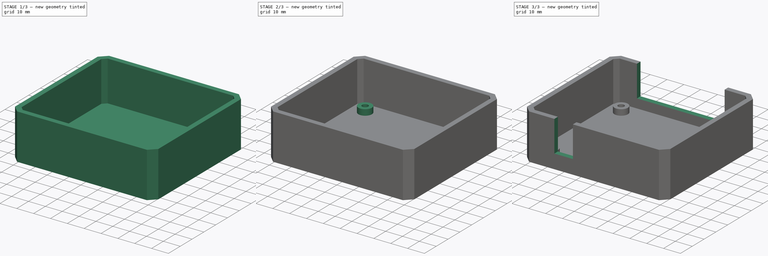
[diagram: build sequence overview — one tinted view per stage of 3, left to right]
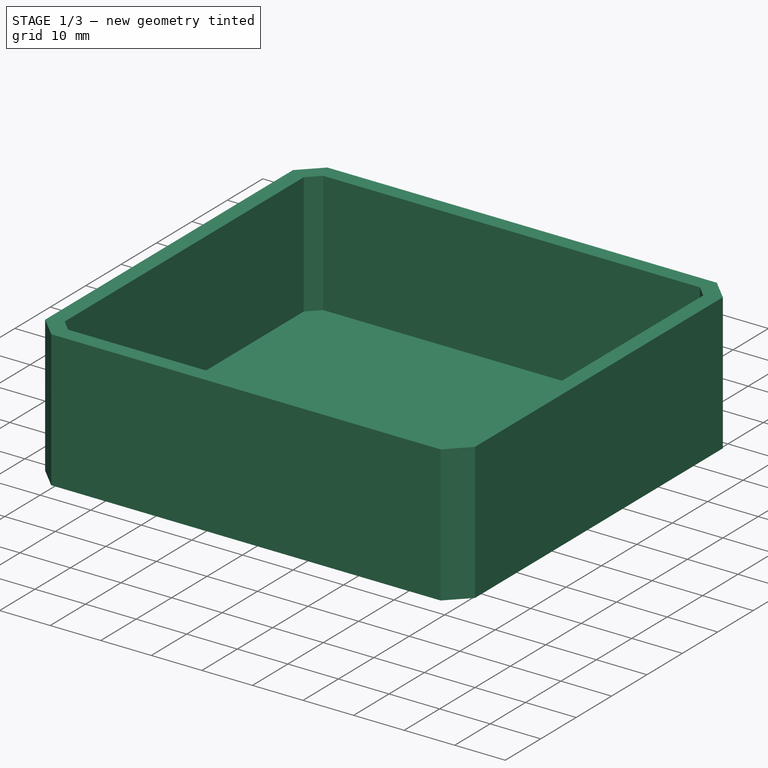
[diagram: stage 1 of 3 — iso view after this stage's code; geometry added in this stage tinted green]
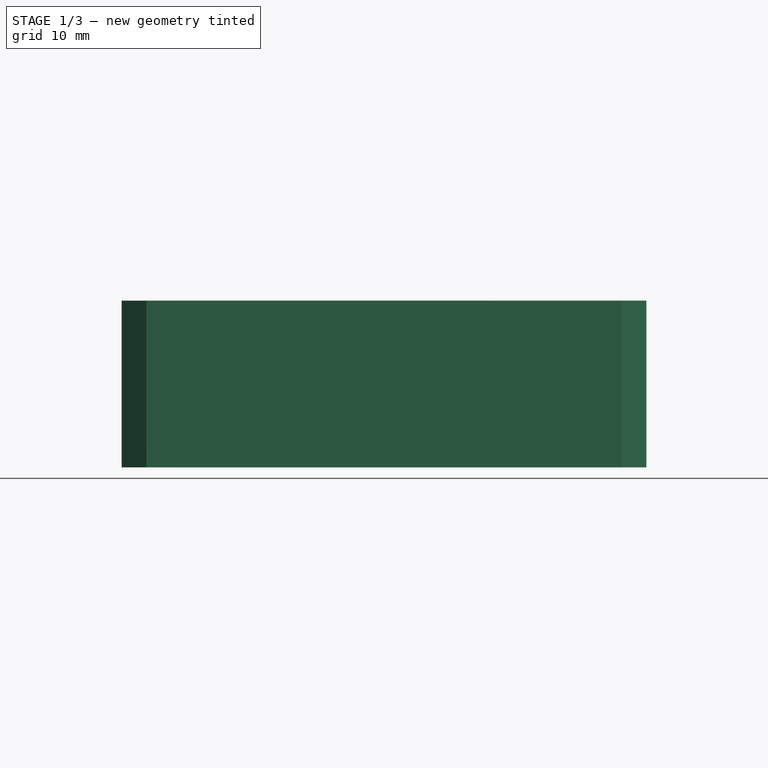
[diagram: stage 1 of 3 — front view after this stage's code; geometry added in this stage tinted green]
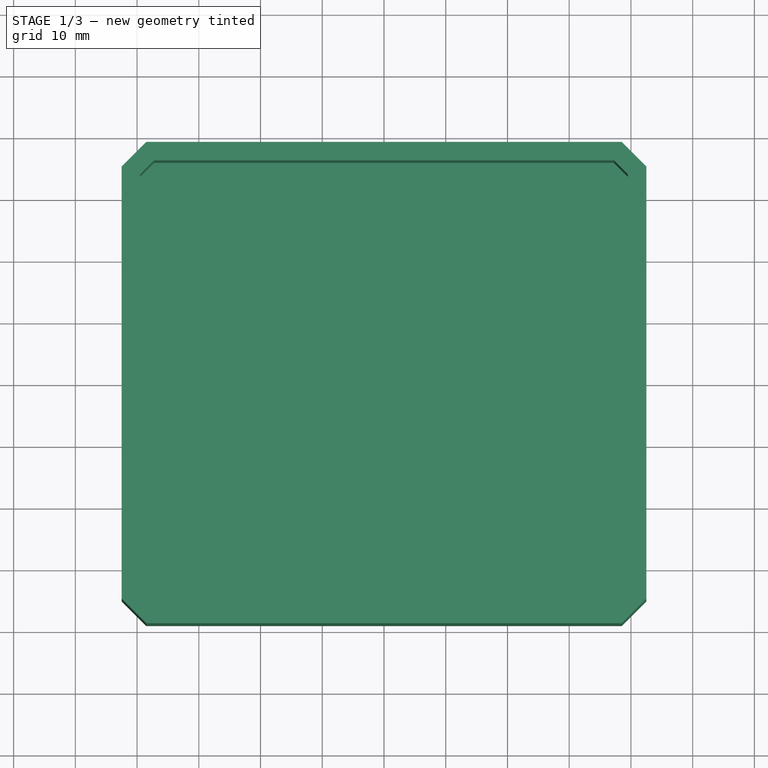
[diagram: stage 1 of 3 — top view after this stage's code; geometry added in this stage tinted green]
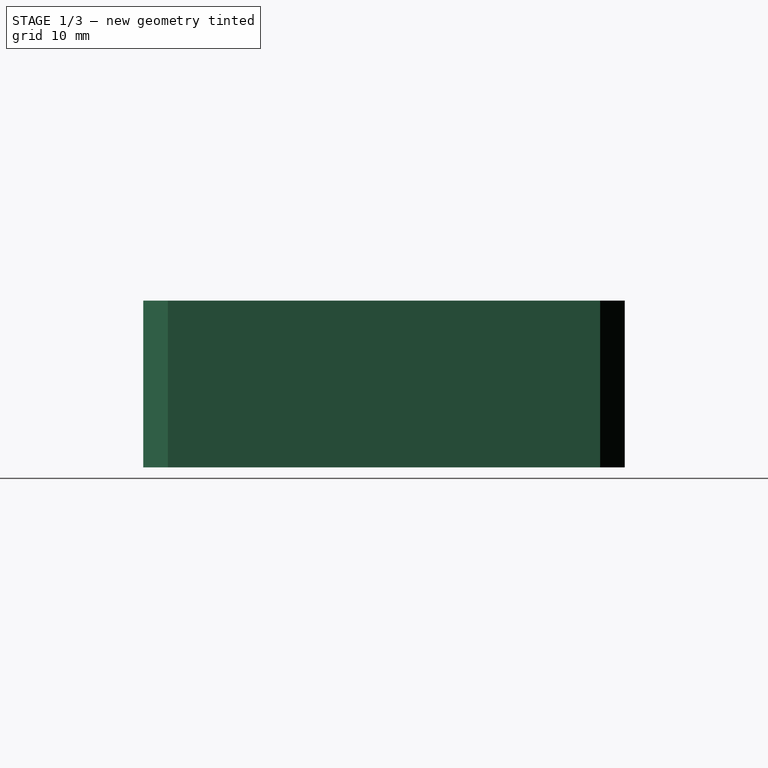
[diagram: stage 1 of 3 — right view after this stage's code; geometry added in this stage tinted green]
FCSTD DOCUMENT  (FreeCAD 0.17R13528 (Git))
Label: PS2 to RS232 base
License: All rights reserved
LicenseURL: http://en.wikipedia.org/wiki/All_rights_reserved
objects: Sketcher::SketchObject×5, PartDesign::Pocket×3, PartDesign::Pad×2, PartDesign::Body×1, Part::Feature×1, App::Part×1, Part::Chamfer×1
note: 18 computed .brp shape members not serialized (recipe doc carries the construction recipe); baked Part::Feature solids carry a one-line shape summary decoded from their .brp

FEATURE [PartDesign::Body] Body
  Origin = -> Origin
FEATURE [Sketcher::SketchObject] Sketch
  MapMode = 5
  Support = -> [XY_Plane]
  sketch-geometry (8):
    g0: LineSegment StartX=38.5 StartY=39 StartZ=0 EndX=-38.5 EndY=39 EndZ=0
    g1: LineSegment StartX=-38.5 StartY=39 StartZ=0 EndX=-42.5 EndY=35 EndZ=0
    g2: LineSegment StartX=-42.5 StartY=35 StartZ=0 EndX=-42.5 EndY=-35 EndZ=0
    g3: LineSegment StartX=-42.5 StartY=-35 StartZ=0 EndX=-38.5 EndY=-39 EndZ=0
    g4: LineSegment StartX=-38.5 StartY=-39 StartZ=0 EndX=38.5 EndY=-39 EndZ=0
    g5: LineSegment StartX=38.5 StartY=-39 StartZ=0 EndX=42.5 EndY=-35 EndZ=0
    g6: LineSegment StartX=42.5 StartY=-35 StartZ=0 EndX=42.5 EndY=35 EndZ=0
    g7: LineSegment StartX=42.5 StartY=35 StartZ=0 EndX=38.5 EndY=39 EndZ=0
  constraints (23):
    c: Coincident(g0,g1)
    c: Coincident(g1,g2)
    c: Coincident(g2,g3)
    c: Coincident(g3,g4)
    c: Coincident(g4,g5)
    c: Coincident(g5,g6)
    c: Coincident(g6,g7)
    c: Coincident(g7,g0)
    c: Horizontal(g0)
    c: Horizontal(g4)
    c: Vertical(g6)
    c: Vertical(g2)
    c: Parallel(g3,g7)
    c: Parallel(g1,g5)
    c: Angle(g2,g1) = 2.35619
    c: Equal(g1,g3)
    c: Equal(g3,g5)
    c: Equal(g5,g7)
    c: DistanceX(g1,g0) = 4
    c: Symmetric(g2,g5,g-2)
    c: Symmetric(g0,g3,g-1)
    c: DistanceX(g1,g6) = 85
    c: DistanceY(g3,g0) = 78
FEATURE [PartDesign::Pad] Pad
  Length = 27
  Length2 = 100
  Profile = -> Sketch
  Type = 0
FEATURE [Sketcher::SketchObject] Sketch001
  ExternalGeometry = -> [Pad]
  MapMode = 5
  Placement = pos=(0,0,27) rot=(0,0,1;0rad)
  Support = -> [Pad]
  sketch-geometry (11):
    g0: LineSegment StartX=37.2574 StartY=36 StartZ=0 EndX=-37.2574 EndY=36 EndZ=0
    g1: LineSegment StartX=-37.2574 StartY=36 StartZ=0 EndX=-39.5 EndY=33.7574 EndZ=0
    g2: LineSegment StartX=-39.5 StartY=33.7574 StartZ=0 EndX=-39.5 EndY=-33.7574 EndZ=0
    g3: LineSegment StartX=-39.5 StartY=-33.7574 StartZ=0 EndX=-37.2574 EndY=-36 EndZ=0
    g4: LineSegment StartX=-37.2574 StartY=-36 StartZ=0 EndX=37.2574 EndY=-36 EndZ=0
    g5: LineSegment StartX=37.2574 StartY=-36 StartZ=0 EndX=39.5 EndY=-33.7574 EndZ=0
    g6: LineSegment StartX=39.5 StartY=-33.7574 StartZ=0 EndX=39.5 EndY=33.7574 EndZ=0
    g7: LineSegment StartX=39.5 StartY=33.7574 StartZ=0 EndX=37.2574 EndY=36 EndZ=0
    g8: LineSegment [constr] StartX=-39.5 StartY=33.7574 StartZ=0 EndX=-41.6213 EndY=35.8787 EndZ=0
    g9: LineSegment [constr] StartX=-37.2574 StartY=36 StartZ=0 EndX=-37.2574 EndY=39 EndZ=0
    g10: LineSegment [constr] StartX=-39.5 StartY=33.7574 StartZ=0 EndX=-42.5 EndY=33.7574 EndZ=0
  constraints (29):
    c: Coincident(g0,g1)
    c: Coincident(g1,g2)
    c: Coincident(g2,g3)
    c: Coincident(g3,g4)
    c: Coincident(g4,g5)
    c: Coincident(g5,g6)
    c: Coincident(g6,g7)
    c: Coincident(g0,g7)
    c: Equal(g7,g1)
    c: Equal(g1,g3)
    c: Equal(g3,g5)
    c: Horizontal(g0)
    c: Horizontal(g4)
    c: Vertical(g2)
    c: Vertical(g6)
    c: Angle(g2,g1) = 2.35619
    c: Parallel(g1,g5)
    c: Parallel(g7,g3)
    c: Symmetric(g1,g6,g-2)
    c: Symmetric(g0,g3,g-1)
    c: Perpendicular(g8,g-3) = 1.5708
    c: Coincident(g8,g1)
    c: Distance(g8) = 3
    c: Coincident(g9,g0)
    c: Perpendicular(g9,g-4) = 1.5708
    c: Equal(g8,g9)
    c: Perpendicular(g10,g-5) = 1.5708
    c: Coincident(g10,g1)
    c: Equal(g10,g8)
FEATURE [PartDesign::Pocket] Pocket
  Length = 24
  Length2 = 100
  Profile = -> Sketch001
  Type = 0
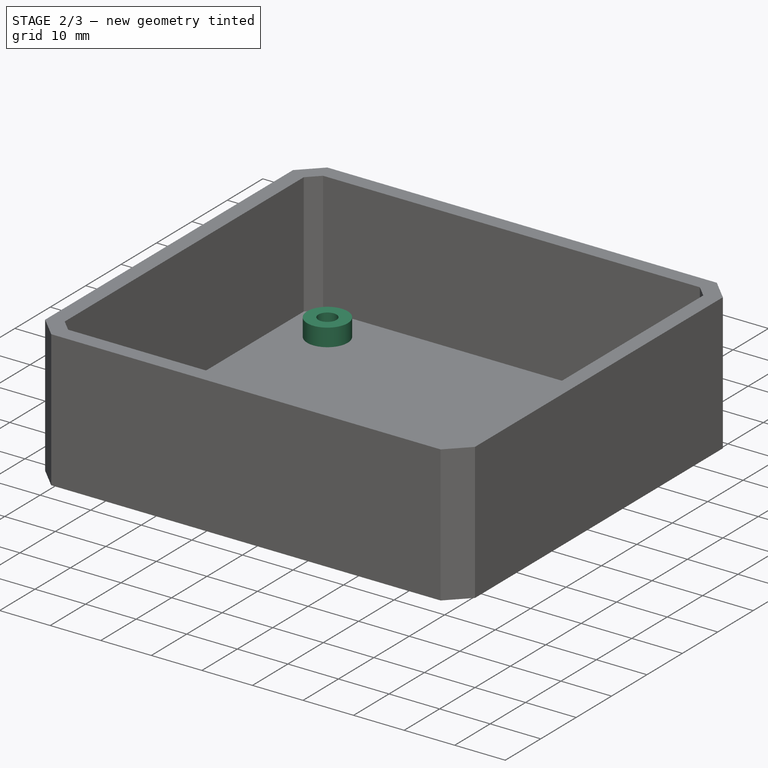
[diagram: stage 2 of 3 — iso view after this stage's code; geometry added in this stage tinted green]
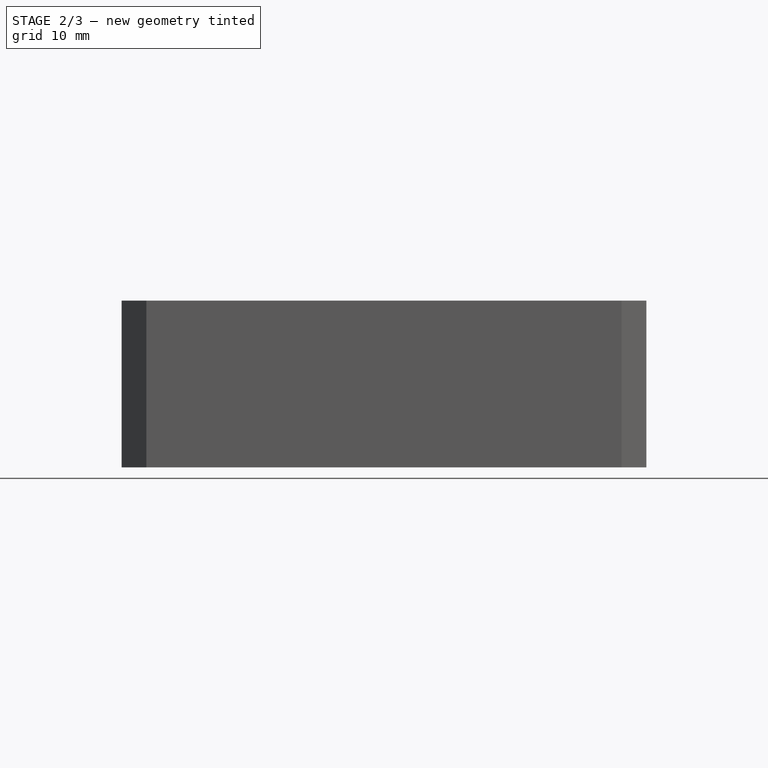
[diagram: stage 2 of 3 — front view after this stage's code; geometry added in this stage tinted green]
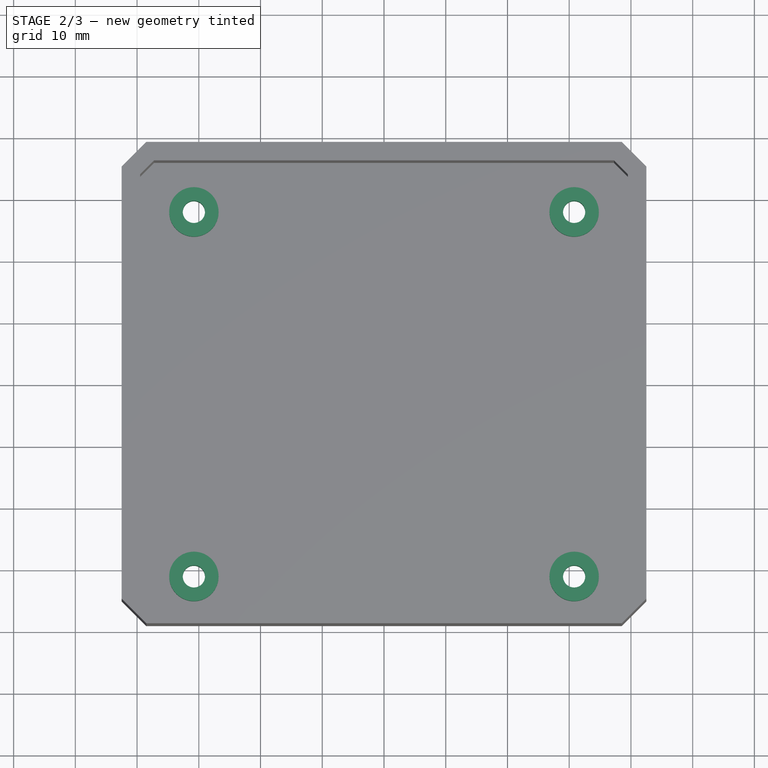
[diagram: stage 2 of 3 — top view after this stage's code; geometry added in this stage tinted green]
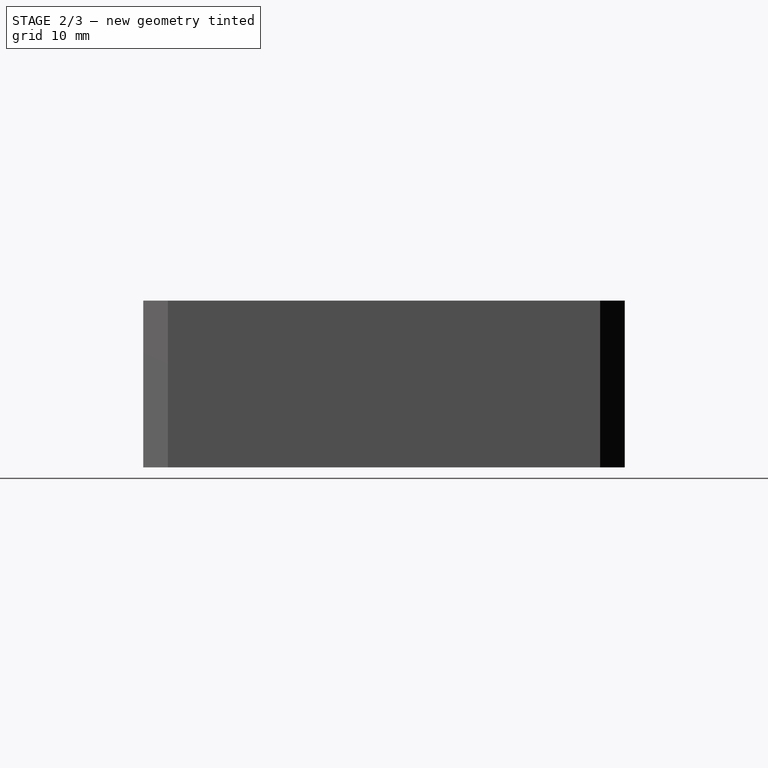
[diagram: stage 2 of 3 — right view after this stage's code; geometry added in this stage tinted green]
FEATURE [Sketcher::SketchObject] Sketch002
  ExternalGeometry = -> [Pocket]
  MapMode = 5
  Placement = pos=(0,0,3) rot=(0,0,1;0rad)
  Support = -> [Pocket]
  sketch-geometry (20):
    g0: Circle CenterX=-30.7975 CenterY=28.0138 CenterZ=0 NormalX=0 NormalY=0 NormalZ=1 AngleXU=0 Radius=4
    g1: Circle CenterX=30.7975 CenterY=28.0138 CenterZ=0 NormalX=0 NormalY=0 NormalZ=1 AngleXU=0 Radius=4
    g2: Circle CenterX=-30.7975 CenterY=-31.0413 CenterZ=0 NormalX=0 NormalY=0 NormalZ=1 AngleXU=0 Radius=4
    g3: Circle CenterX=30.7975 CenterY=-31.0413 CenterZ=0 NormalX=0 NormalY=0 NormalZ=1 AngleXU=0 Radius=4
    g4: LineSegment [constr] StartX=-30.7975 StartY=28.0138 StartZ=0 EndX=30.7975 EndY=28.0138 EndZ=0
    g5: LineSegment [constr] StartX=30.7975 StartY=28.0138 StartZ=0 EndX=30.7975 EndY=-31.0413 EndZ=0
    g6: LineSegment [constr] StartX=30.7975 StartY=-31.0413 StartZ=0 EndX=-30.7975 EndY=-31.0413 EndZ=0
    g7: LineSegment [constr] StartX=-30.7975 StartY=-31.0413 StartZ=0 EndX=-30.7975 EndY=28.0138 EndZ=0
    g8: LineSegment [constr] StartX=-34.76 StartY=35.4862 StartZ=0 EndX=34.76 EndY=35.4862 EndZ=0
    g9: LineSegment [constr] StartX=34.76 StartY=35.4862 StartZ=0 EndX=34.76 EndY=-35.4862 EndZ=0
    g10: LineSegment [constr] StartX=34.76 StartY=-35.4862 StartZ=0 EndX=-34.76 EndY=-35.4862 EndZ=0
    g11: LineSegment [constr] StartX=-34.76 StartY=-35.4862 StartZ=0 EndX=-34.76 EndY=35.4862 EndZ=0
    g12: LineSegment [constr] StartX=-10.24 StartY=39 StartZ=0 EndX=21.76 EndY=39 EndZ=0
    g13: LineSegment [constr] StartX=21.76 StartY=39 StartZ=0 EndX=21.76 EndY=35.4862 EndZ=0
    g14: LineSegment [constr] StartX=21.76 StartY=35.4862 StartZ=0 EndX=-10.24 EndY=35.4862 EndZ=0
    g15: LineSegment [constr] StartX=-10.24 StartY=35.4862 StartZ=0 EndX=-10.24 EndY=39 EndZ=0
    g16: LineSegment [constr] StartX=-25.26 StartY=36.4862 StartZ=0 EndX=-11.26 EndY=36.4862 EndZ=0
    g17: LineSegment [constr] StartX=-11.26 StartY=36.4862 StartZ=0 EndX=-11.26 EndY=35.4862 EndZ=0
    g18: LineSegment [constr] StartX=-11.26 StartY=35.4862 StartZ=0 EndX=-25.26 EndY=35.4862 EndZ=0
    g19: LineSegment [constr] StartX=-25.26 StartY=35.4862 StartZ=0 EndX=-25.26 EndY=36.4862 EndZ=0
  constraints (56):
    c: Coincident(g4,g5)
    c: Coincident(g5,g6)
    c: Coincident(g6,g7)
    c: Coincident(g7,g4)
    c: Horizontal(g4)
    c: Horizontal(g6)
    c: Vertical(g5)
    c: Vertical(g7)
    c: Coincident(g6,g2)
    c: Coincident(g3,g5)
    c: Coincident(g1,g4)
    c: Coincident(g4,g0)
    c: Distance(g4) = 61.595
    c: Distance(g7) = 59.055
    c: Radius(g0) = 4
    c: Equal(g0,g1)
    c: Equal(g0,g3)
    c: Equal(g0,g2)
    c: Symmetric(g0,g1,g-2)
    c: Coincident(g8,g9)
    c: Coincident(g9,g10)
    c: Coincident(g10,g11)
    c: Coincident(g11,g8)
    c: Horizontal(g8)
    c: Horizontal(g10)
    c: Vertical(g9)
    c: Vertical(g11)
    c: Distance(g11) = 70.9725
    c: Distance(g10) = 69.52
    c: Symmetric(g8,g8,g-2)
    c: DistanceY(g10,g2) = 4.445
    c: Coincident(g12,g13)
    c: Coincident(g13,g14)
    c: Coincident(g14,g15)
    c: Coincident(g15,g12)
    c: Horizontal(g12)
    c: Horizontal(g14)
    c: Vertical(g13)
    c: Vertical(g15)
    c: Distance(g12) = 32
    c: PointOnObject(g14,g8)
    c: PointOnObject(g12,g-3)
    c: DistanceX(g13,g8) = 13
    c: Coincident(g16,g17)
    c: Coincident(g17,g18)
    c: Coincident(g18,g19)
    c: Coincident(g19,g16)
    c: Horizontal(g16)
    c: Horizontal(g18)
    c: Vertical(g17)
    c: Vertical(g19)
    c: Distance(g16) = 14
    c: Distance(g19) = 1
    c: PointOnObject(g18,g8)
    c: DistanceX(g8,g18) = 9.5
    c: Symmetric(g8,g10,g-1)
FEATURE [PartDesign::Pad] Pad001
  Length = 3.5
  Length2 = 100
  Profile = -> Sketch002
  Type = 0
FEATURE [Sketcher::SketchObject] Sketch003
  ExternalGeometry = -> [Pad001]
  MapMode = 5
  Placement = pos=(0,0,6.5) rot=(0,0,1;0rad)
  Support = -> [Pad001]
  sketch-geometry (4):
    g0: Circle CenterX=-30.7975 CenterY=28.0138 CenterZ=0 NormalX=0 NormalY=0 NormalZ=1 AngleXU=0 Radius=1.8
    g1: Circle CenterX=30.7975 CenterY=28.0138 CenterZ=0 NormalX=0 NormalY=0 NormalZ=1 AngleXU=0 Radius=1.8
    g2: Circle CenterX=-30.7975 CenterY=-31.0413 CenterZ=0 NormalX=0 NormalY=0 NormalZ=1 AngleXU=0 Radius=1.8
    g3: Circle CenterX=30.7975 CenterY=-31.0413 CenterZ=0 NormalX=0 NormalY=0 NormalZ=1 AngleXU=0 Radius=1.8
  constraints (8):
    c: Radius(g2) = 1.8
    c: Equal(g2,g3)
    c: Equal(g2,g0)
    c: Equal(g2,g1)
    c: Coincident(g0,g-3)
    c: Symmetric(g0,g1,g-2)
    c: Symmetric(g2,g3,g-2)
    c: Coincident(g2,g-4)
FEATURE [PartDesign::Pocket] Pocket001
  Length = 5
  Length2 = 100
  Profile = -> Sketch003
  Type = 1
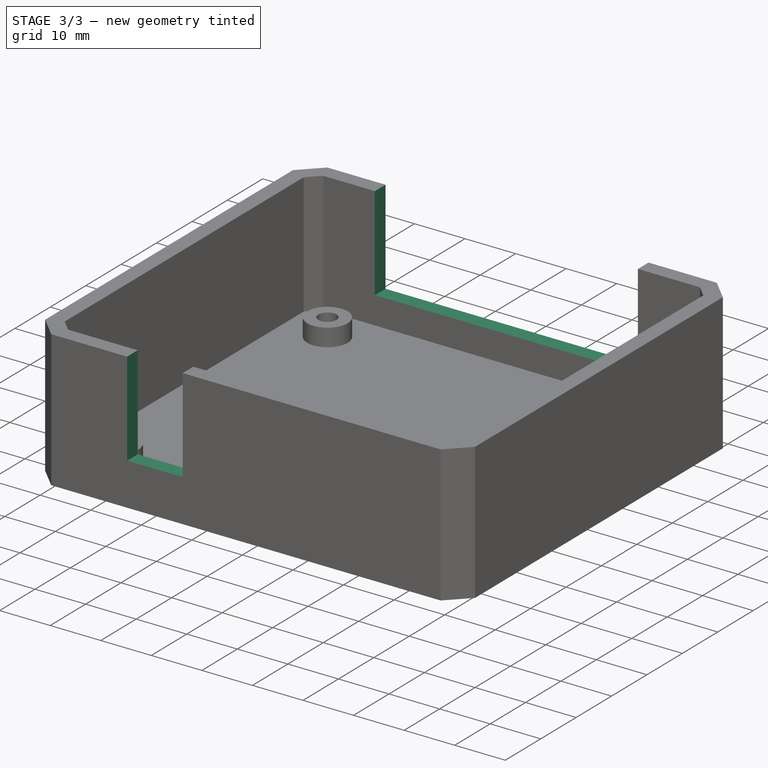
[diagram: stage 3 of 3 — iso view after this stage's code; geometry added in this stage tinted green]
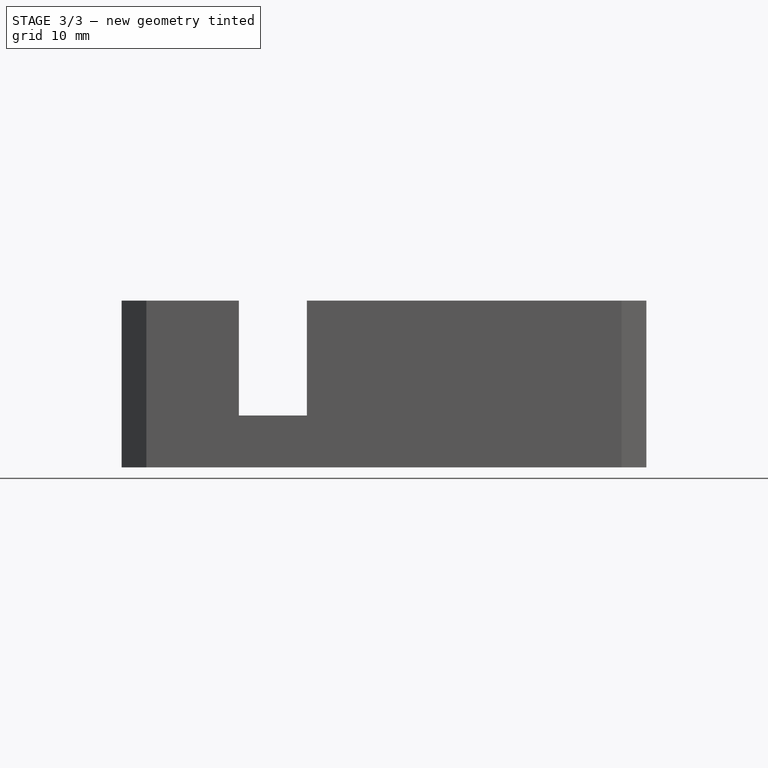
[diagram: stage 3 of 3 — front view after this stage's code; geometry added in this stage tinted green]
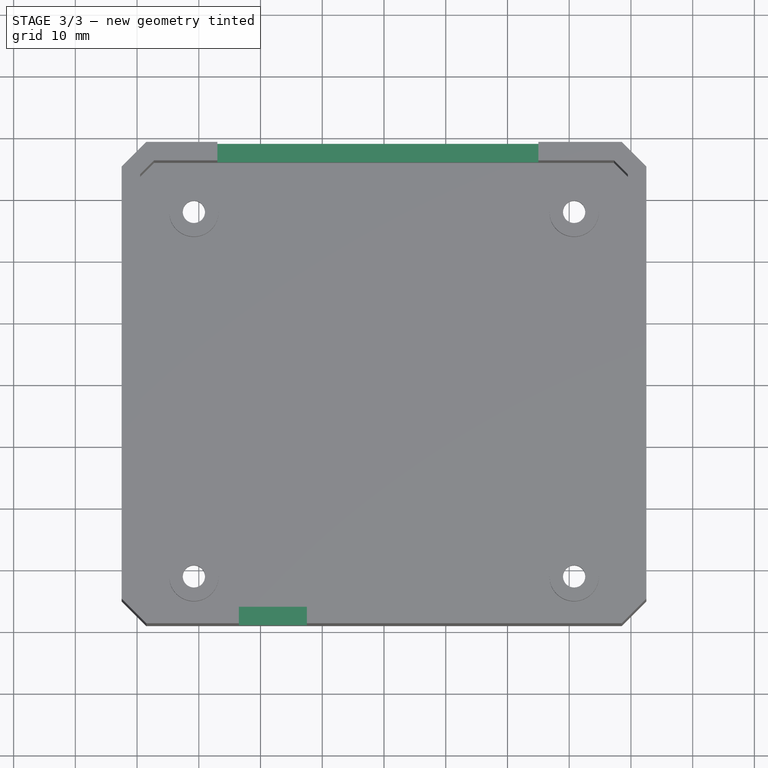
[diagram: stage 3 of 3 — top view after this stage's code; geometry added in this stage tinted green]
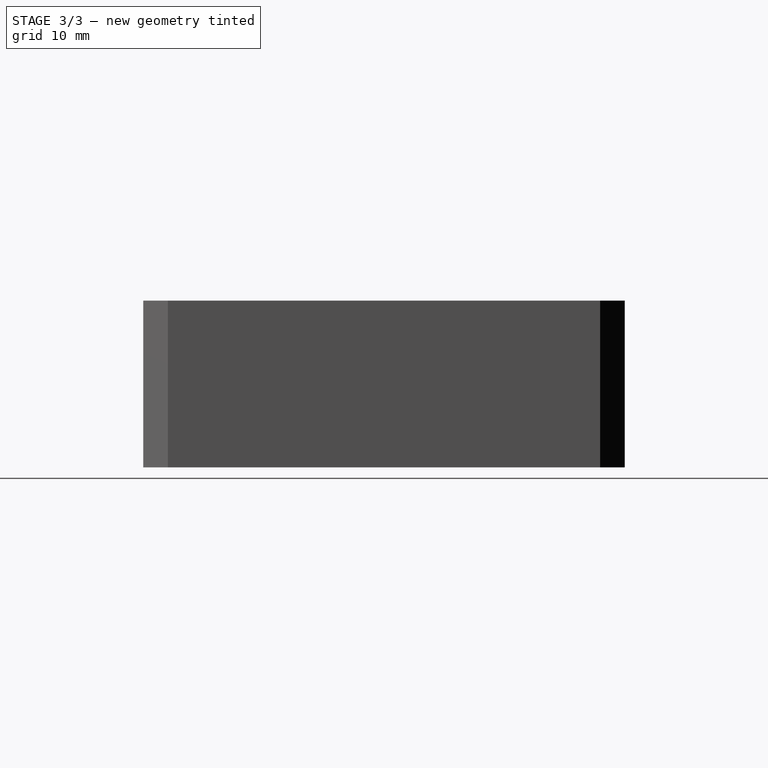
[diagram: stage 3 of 3 — right view after this stage's code; geometry added in this stage tinted green]
FEATURE [Sketcher::SketchObject] Sketch004
  ExternalGeometry = -> [Pocket001]
  MapMode = 5
  Placement = pos=(0,0,27) rot=(0,0,1;0rad)
  Support = -> [Pocket001]
  sketch-geometry (9):
    g0: LineSegment StartX=-27 StartY=39 StartZ=0 EndX=25 EndY=39 EndZ=0
    g1: LineSegment StartX=25 StartY=39 StartZ=0 EndX=25 EndY=36 EndZ=0
    g2: LineSegment StartX=25 StartY=36 StartZ=0 EndX=-27 EndY=36 EndZ=0
    g3: LineSegment StartX=-27 StartY=36 StartZ=0 EndX=-27 EndY=39 EndZ=0
    g4: LineSegment StartX=-23.5 StartY=-36 StartZ=0 EndX=-12.5 EndY=-36 EndZ=0
    g5: LineSegment StartX=-12.5 StartY=-36 StartZ=0 EndX=-12.5 EndY=-39 EndZ=0
    g6: LineSegment StartX=-12.5 StartY=-39 StartZ=0 EndX=-23.5 EndY=-39 EndZ=0
    g7: LineSegment StartX=-23.5 StartY=-39 StartZ=0 EndX=-23.5 EndY=-36 EndZ=0
    g8: LineSegment [constr] StartX=-18 StartY=-36 StartZ=0 EndX=-18 EndY=-39 EndZ=0
  constraints (27):
    c: Coincident(g0,g1)
    c: Coincident(g1,g2)
    c: Coincident(g2,g3)
    c: Coincident(g3,g0)
    c: Horizontal(g0)
    c: Horizontal(g2)
    c: Vertical(g1)
    c: Vertical(g3)
    c: PointOnObject(g0,g-3)
    c: PointOnObject(g2,g-4)
    c: Distance(g2) = 52
    c: DistanceX(g2) = -27
    c: Coincident(g4,g5)
    c: Coincident(g5,g6)
    c: Coincident(g6,g7)
    c: Coincident(g7,g4)
    c: Horizontal(g4)
    c: Horizontal(g6)
    c: Vertical(g5)
    c: Vertical(g7)
    c: PointOnObject(g4,g-5)
    c: PointOnObject(g6,g-6)
    c: Distance(g6) = 11
    c: Perpendicular(g8,g4) = 1.5708
    c: PointOnObject(g8,g6)
    c: Symmetric(g4,g4,g8)
    c: DistanceX(g8) = -18
FEATURE [PartDesign::Pocket] Pocket002
  BaseFeature = -> Pocket001
  Length = 18.6
  Length2 = 100
  Profile = -> Sketch004
  Type = 0
FEATURE [Part::Feature] Part__Feature  label="Finished_lid"
  Placement = pos=(0,0,27.1) rot=(0,0,1;0rad)
  shape: bbox 85 x 78 x 21 mm, 46 faces (baked)
FEATURE [App::Part] Part
  Group = -> [Sketch002,Sketch001,Sketch004,Sketch,Pad,Pocket,Pad001,Sketch003,Pocket001,Pocket002]
  License = CC BY 3.0
  LicenseURL = http://creativecommons.org/licenses/by/3.0/
  Origin = -> Origin001
FEATURE [Part::Chamfer] Chamfer
  Base = -> Pocket002
  Edges = 4 edges r=2.5: [Edge16,Edge17,Edge18,Edge19]
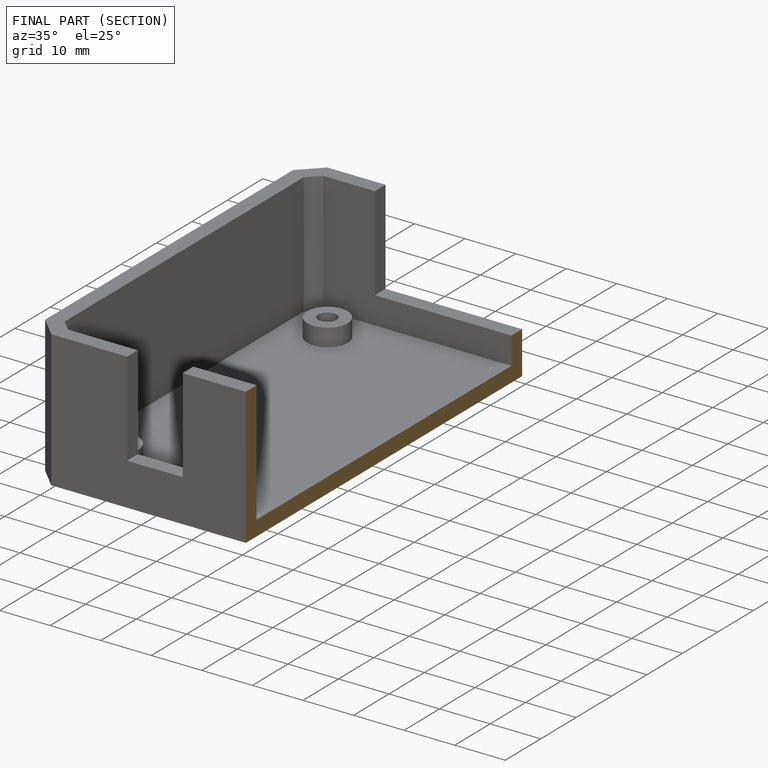
[diagram: finished part — half-section view (interior)]
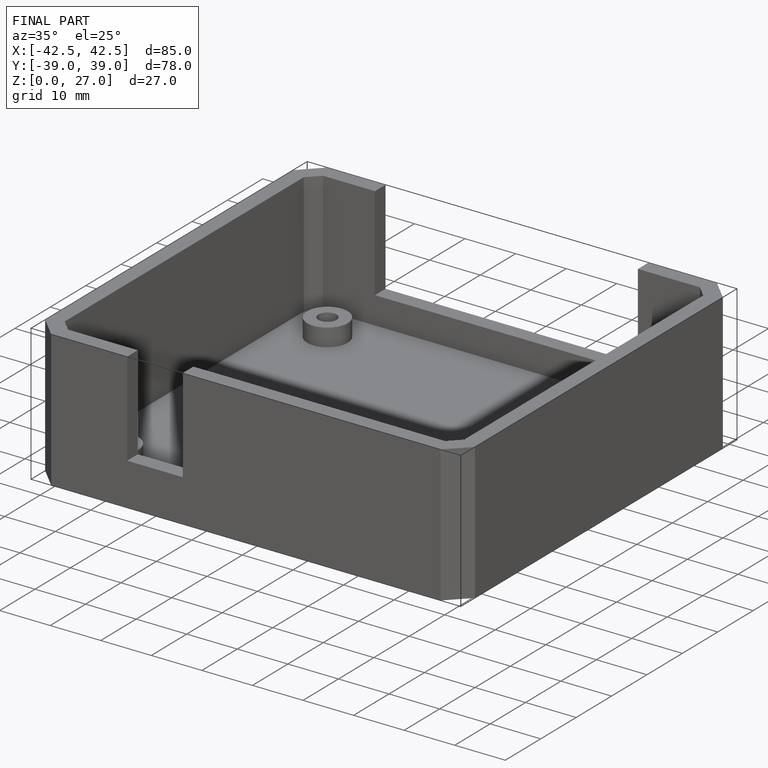
[diagram: finished part — iso view with bounding-box wireframe]
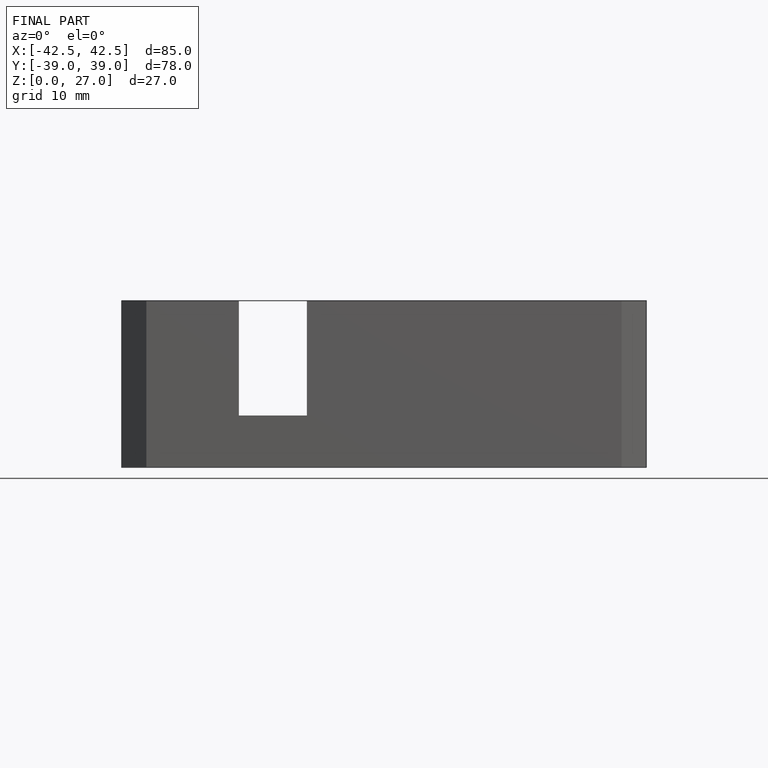
[diagram: finished part — front view with bounding-box wireframe]
